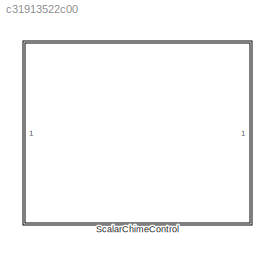
MODEL slx_c31913522c00
KIND library
CONFIG AbsTol = auto
CONFIG EnableMultiTasking = off
CONFIG FixedStep = auto
CONFIG MaxStep = auto
CONFIG MinStep = auto
CONFIG RelTol = 1e-3
CONFIG SampleTimeConstraint = Unconstrained
CONFIG SolverName = VariableStepAuto
CONFIG StartTime = 0.0
CONFIG StopTime = 10.0
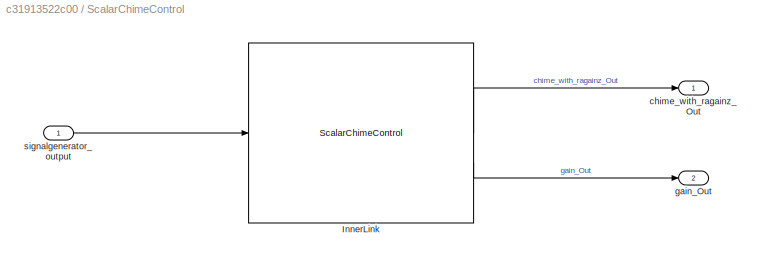
BLOCK [SubSystem] ScalarChimeControl
BLOCK [Reference] ScalarChimeControl/InnerLink  REF=ScalarChimeControlLibBtc/ScalarChimeControl
  SourceBlock = ScalarChimeControlLibBtc/ScalarChimeControl
  SourceProductName = Bose Blocklib
BLOCK [Outport] ScalarChimeControl/chime_with_ragainz_Out
BLOCK [Outport] ScalarChimeControl/gain_Out
  Port = 2
BLOCK [Inport] ScalarChimeControl/signalgenerator_output
LINE ScalarChimeControl/InnerLink:1 -> ScalarChimeControl/chime_with_ragainz_Out:1
LINE ScalarChimeControl/InnerLink:2 -> ScalarChimeControl/gain_Out:1
LINE ScalarChimeControl/signalgenerator_output:1 -> ScalarChimeControl/InnerLink:1
